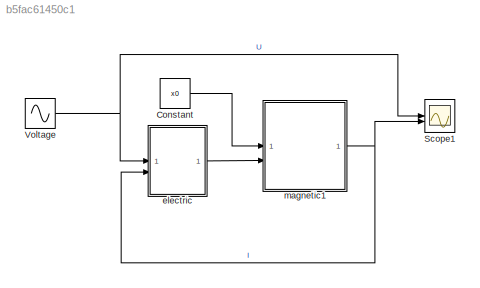
MODEL slx_b5fac61450c1
KIND model
CONFIG AbsTol = auto
CONFIG EnableMultiTasking = off
CONFIG FixedStep = auto
CONFIG MaxStep = te/100
CONFIG MinStep = auto
CONFIG RelTol = 1e-3
CONFIG SampleTimeConstraint = Unconstrained
CONFIG SolverName = VariableStepAuto
CONFIG StartTime = 0.0
CONFIG StopTime = te
BLOCK [Constant] Constant
  Value = x0
BLOCK [Scope] Scope1
  Floating = off
  NumInputPorts = 2
  ScopeSpecificationString = Simulink.scopes.TimeScopeBlockCfg('CurrentConfiguration', extmgr.ConfigurationSet(extmgr.Configuration('Core','General UI',true),extmgr.Configuration('Core','Source UI',true),extmgr.Configuration('Sources','WiredSimulink',true,'DataLoggingVariableName','ScopeData1'),extmgr.Configuration('Visuals','Time Domain',true,'SerializedDisplays',{struct('MinYLimReal','-12.39245','MaxYLimReal','12.47756','YL...<+1497ch>
BLOCK [Sin] Voltage
  Amplitude = U
  Frequency = w
  SampleTime = 0
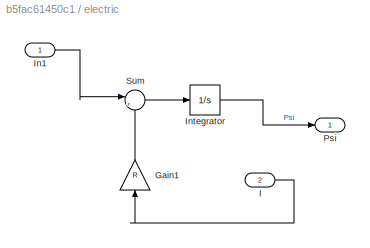
BLOCK [SubSystem] electric
BLOCK [Gain] electric/Gain1
  Gain = R
  NameLocation = right
BLOCK [Inport] electric/I
  Port = 2
BLOCK [Inport] electric/In1
BLOCK [Integrator] electric/Integrator
BLOCK [Outport] electric/Psi
BLOCK [Sum] electric/Sum
  Inputs = |+-
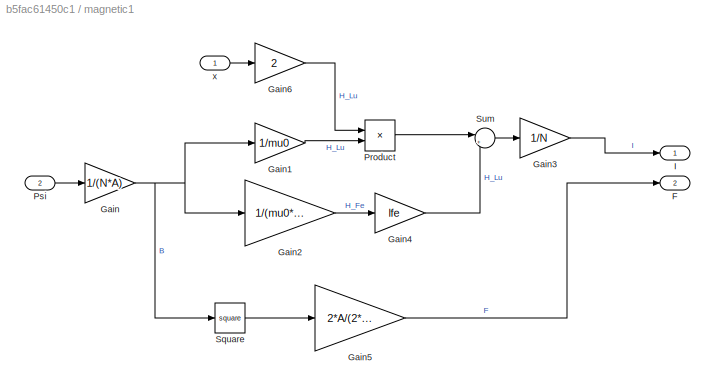
BLOCK [SubSystem] magnetic1
BLOCK [Outport] magnetic1/F
  Port = 2
BLOCK [Gain] magnetic1/Gain
  Gain = 1/(N*A)
BLOCK [Gain] magnetic1/Gain1
  Gain = 1/mu0
BLOCK [Gain] magnetic1/Gain2
  Gain = 1/(mu0*mur)
BLOCK [Gain] magnetic1/Gain3
  Gain = 1/N
BLOCK [Gain] magnetic1/Gain4
  Gain = lfe
BLOCK [Gain] magnetic1/Gain5
  Gain = 2*A/(2*mu0)
BLOCK [Gain] magnetic1/Gain6
  Gain = 2
BLOCK [Outport] magnetic1/I
BLOCK [Product] magnetic1/Product
BLOCK [Inport] magnetic1/Psi
  Port = 2
BLOCK [Math] magnetic1/Square
  Operator = square
BLOCK [Sum] magnetic1/Sum
  Inputs = |++
BLOCK [Inport] magnetic1/x
LINE Constant:1 -> magnetic1:1
NET Voltage:1 -> Scope1:1, electric:1
LINE electric/Gain1:1 -> electric/Sum:2
LINE electric/I:1 -> electric/Gain1:1
LINE electric/In1:1 -> electric/Sum:1
LINE electric/Integrator:1 -> electric/Psi:1
LINE electric/Sum:1 -> electric/Integrator:1
LINE electric:1 -> magnetic1:2
LINE magnetic1/Gain1:1 -> magnetic1/Product:2
LINE magnetic1/Gain2:1 -> magnetic1/Gain4:1
LINE magnetic1/Gain3:1 -> magnetic1/I:1
LINE magnetic1/Gain4:1 -> magnetic1/Sum:2
LINE magnetic1/Gain5:1 -> magnetic1/F:1
LINE magnetic1/Gain6:1 -> magnetic1/Product:1
NET magnetic1/Gain:1 -> magnetic1/Gain1:1, magnetic1/Gain2:1, magnetic1/Square:1
LINE magnetic1/Product:1 -> magnetic1/Sum:1
LINE magnetic1/Psi:1 -> magnetic1/Gain:1
LINE magnetic1/Square:1 -> magnetic1/Gain5:1
LINE magnetic1/Sum:1 -> magnetic1/Gain3:1
LINE magnetic1/x:1 -> magnetic1/Gain6:1
NET magnetic1:1 -> Scope1:2, electric:2
note: NET lines group one-source signal fan-out (src -> all destinations, sorted); 1:1 wires keep LINE
